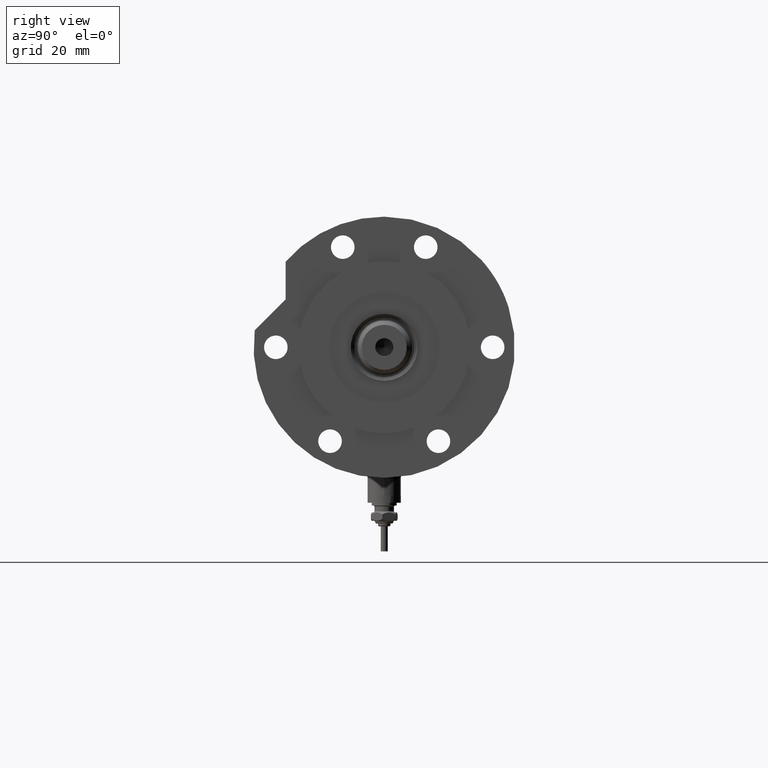
[diagram: clean part render]
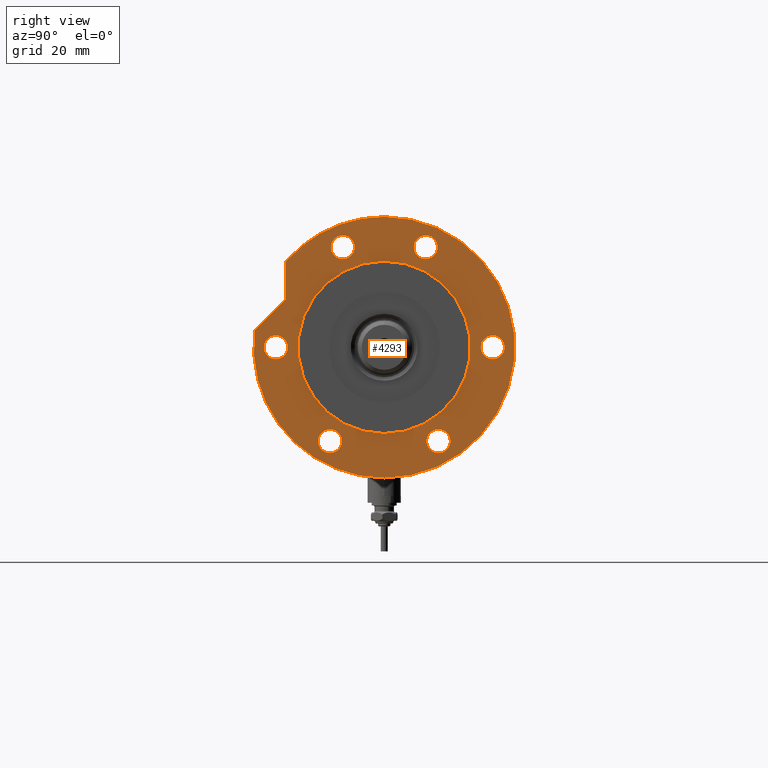
[diagram: same view with one face highlighted and labeled with its STEP entity id]
A machine part, right view. The second image highlights one B-rep face of the part: STEP entity #4293.
In plain terms, the highlighted planar face has unit normal (1, 0, -0).
Its self-contained STEP definition (entity closure, byte-faithful):
#50 = DIRECTION ( 'NONE',  ( 1.000000000000000000, 0.000000000000000000, 0.000000000000000000 ) ) ;
#74 = DIRECTION ( 'NONE',  ( 0.000000000000000000, 0.000000000000000000, 1.000000000000000000 ) ) ;
#185 = FACE_OUTER_BOUND ( 'NONE', #6231, .T. ) ;
#308 = EDGE_CURVE ( 'NONE', #7787, #611, #6320, .T. ) ;
#309 = VERTEX_POINT ( 'NONE', #6880 ) ;
#310 = ORIENTED_EDGE ( 'NONE', *, *, #2231, .F. ) ;
#326 = EDGE_CURVE ( 'NONE', #611, #7787, #3252, .T. ) ;
#352 = CARTESIAN_POINT ( 'NONE',  ( 0.000000000000000000, 0.000000000000000000, 17.00000000000000000 ) ) ;
#359 = CARTESIAN_POINT ( 'NONE',  ( 31.00000000000000711, 3.796405077356795904E-15, 17.00000000000000000 ) ) ;
#396 = CARTESIAN_POINT ( 'NONE',  ( 17.22217135699461110, 35.47361286101150313, 17.00000000000000000 ) ) ;
#560 = ORIENTED_EDGE ( 'NONE', *, *, #6958, .F. ) ;
#598 = DIRECTION ( 'NONE',  ( 0.000000000000000000, 0.000000000000000000, 1.000000000000000000 ) ) ;
#611 = VERTEX_POINT ( 'NONE', #1117 ) ;
#627 = CARTESIAN_POINT ( 'NONE',  ( 3.617158501555293296E-14, 35.47361286101151734, 17.00000000000000000 ) ) ;
#727 = EDGE_CURVE ( 'NONE', #4957, #3474, #4278, .T. ) ;
#742 = CARTESIAN_POINT ( 'NONE',  ( -31.00000000000000711, 0.000000000000000000, 17.00000000000000000 ) ) ;
#959 = ORIENTED_EDGE ( 'NONE', *, *, #5903, .F. ) ;
#961 = CARTESIAN_POINT ( 'NONE',  ( 0.000000000000000000, 0.000000000000000000, 17.00000000000000000 ) ) ;
#1002 = CIRCLE ( 'NONE', #6135, 4.249999999999996447 ) ;
#1100 = VERTEX_POINT ( 'NONE', #1136 ) ;
#1117 = CARTESIAN_POINT ( 'NONE',  ( -38.02499074759302289, -19.50000000000015277, 17.00000000000000000 ) ) ;
#1132 = CIRCLE ( 'NONE', #7792, 46.99999999999999289 ) ;
#1136 = CARTESIAN_POINT ( 'NONE',  ( 46.99999999999999289, 5.755839955992559063E-15, 17.00000000000000000 ) ) ;
#1149 = DIRECTION ( 'NONE',  ( 0.7071067811865511255, -0.7071067811865440200, 0.000000000000000000 ) ) ;
#1159 = DIRECTION ( 'NONE',  ( 1.000000000000000000, 0.000000000000000000, 0.000000000000000000 ) ) ;
#1223 = VERTEX_POINT ( 'NONE', #742 ) ;
#1286 = DIRECTION ( 'NONE',  ( 0.000000000000000000, 0.000000000000000000, 1.000000000000000000 ) ) ;
#1287 = DIRECTION ( 'NONE',  ( 1.000000000000000000, 0.000000000000000000, 0.000000000000000000 ) ) ;
#1304 = EDGE_LOOP ( 'NONE', ( #310, #6862 ) ) ;
#1311 = CARTESIAN_POINT ( 'NONE',  ( 0.000000000000000000, 39.00000000000000000, 17.00000000000000000 ) ) ;
#1329 = CARTESIAN_POINT ( 'NONE',  ( -33.77499074759302289, -19.50000000000015277, 17.00000000000000000 ) ) ;
#1349 = DIRECTION ( 'NONE',  ( 1.000000000000000000, 0.000000000000000000, 0.000000000000000000 ) ) ;
#1400 = CARTESIAN_POINT ( 'NONE',  ( 0.000000000000000000, 39.00000000000000000, 17.00000000000000000 ) ) ;
#1523 = CIRCLE ( 'NONE', #7285, 31.00000000000000711 ) ;
#1645 = LINE ( 'NONE', #3511, #2077 ) ;
#1652 = CARTESIAN_POINT ( 'NONE',  ( 36.03130176794011419, -14.92465386223865842, 17.00000000000000000 ) ) ;
#1681 = DIRECTION ( 'NONE',  ( 0.000000000000000000, 0.000000000000000000, 1.000000000000000000 ) ) ;
#1716 = AXIS2_PLACEMENT_3D ( 'NONE', #352, #5871, #2160 ) ;
#1729 = CARTESIAN_POINT ( 'NONE',  ( 30.83217135699462830, 35.47361286101148892, 17.00000000000000000 ) ) ;
#1801 = ORIENTED_EDGE ( 'NONE', *, *, #4944, .F. ) ;
#1890 = DIRECTION ( 'NONE',  ( 1.000000000000000000, 0.000000000000000000, 0.000000000000000000 ) ) ;
#2068 = CIRCLE ( 'NONE', #4263, 4.250000000000000888 ) ;
#2077 = VECTOR ( 'NONE', #1149, 999.9999999999998863 ) ;
#2109 = EDGE_CURVE ( 'NONE', #6308, #1223, #2941, .T. ) ;
#2128 = ORIENTED_EDGE ( 'NONE', *, *, #2756, .F. ) ;
#2159 = VERTEX_POINT ( 'NONE', #3307 ) ;
#2160 = DIRECTION ( 'NONE',  ( 1.000000000000000000, 0.000000000000000000, 0.000000000000000000 ) ) ;
#2188 = AXIS2_PLACEMENT_3D ( 'NONE', #4912, #2382, #1159 ) ;
#2206 = AXIS2_PLACEMENT_3D ( 'NONE', #1329, #4964, #1890 ) ;
#2222 = DIRECTION ( 'NONE',  ( 1.000000000000000000, 0.000000000000000000, 0.000000000000000000 ) ) ;
#2225 = VERTEX_POINT ( 'NONE', #5873 ) ;
#2231 = EDGE_CURVE ( 'NONE', #1223, #6308, #1523, .T. ) ;
#2294 = CIRCLE ( 'NONE', #2429, 4.250000000000000888 ) ;
#2382 = DIRECTION ( 'NONE',  ( 0.000000000000000000, 0.000000000000000000, 1.000000000000000000 ) ) ;
#2429 = AXIS2_PLACEMENT_3D ( 'NONE', #1311, #598, #7344 ) ;
#2479 = EDGE_CURVE ( 'NONE', #2159, #1100, #1132, .T. ) ;
#2497 = VERTEX_POINT ( 'NONE', #4576 ) ;
#2546 = ORIENTED_EDGE ( 'NONE', *, *, #2479, .T. ) ;
#2552 = CIRCLE ( 'NONE', #5126, 4.250000000000003553 ) ;
#2569 = CIRCLE ( 'NONE', #4754, 46.99999999999999289 ) ;
#2601 = FACE_BOUND ( 'NONE', #7916, .T. ) ;
#2621 = CIRCLE ( 'NONE', #1716, 46.99999999999999289 ) ;
#2656 = ORIENTED_EDGE ( 'NONE', *, *, #7903, .T. ) ;
#2682 = AXIS2_PLACEMENT_3D ( 'NONE', #6096, #7896, #4887 ) ;
#2724 = FACE_BOUND ( 'NONE', #3155, .T. ) ;
#2731 = ORIENTED_EDGE ( 'NONE', *, *, #3242, .F. ) ;
#2756 = EDGE_CURVE ( 'NONE', #2497, #5073, #5119, .T. ) ;
#2871 = EDGE_CURVE ( 'NONE', #4212, #4375, #1002, .T. ) ;
#2941 = CIRCLE ( 'NONE', #7669, 31.00000000000000711 ) ;
#2943 = ORIENTED_EDGE ( 'NONE', *, *, #4113, .F. ) ;
#2986 = CIRCLE ( 'NONE', #3241, 4.250000000000003553 ) ;
#2999 = CIRCLE ( 'NONE', #6326, 4.250000000000000888 ) ;
#3071 = DIRECTION ( 'NONE',  ( 1.000000000000000000, 0.000000000000000000, 0.000000000000000000 ) ) ;
#3154 = DIRECTION ( 'NONE',  ( 0.000000000000000000, 0.000000000000000000, 1.000000000000000000 ) ) ;
#3155 = EDGE_LOOP ( 'NONE', ( #2128, #2731 ) ) ;
#3192 = DIRECTION ( 'NONE',  ( 1.000000000000000000, 0.000000000000000000, 0.000000000000000000 ) ) ;
#3209 = CARTESIAN_POINT ( 'NONE',  ( -4.250000000000000888, -39.00000000000000000, 17.00000000000000000 ) ) ;
#3241 = AXIS2_PLACEMENT_3D ( 'NONE', #5885, #4519, #2222 ) ;
#3242 = EDGE_CURVE ( 'NONE', #5073, #2497, #2552, .T. ) ;
#3248 = ORIENTED_EDGE ( 'NONE', *, *, #308, .F. ) ;
#3252 = CIRCLE ( 'NONE', #2206, 4.250000000000003553 ) ;
#3307 = CARTESIAN_POINT ( 'NONE',  ( -46.99999999999999289, 0.000000000000000000, 17.00000000000000000 ) ) ;
#3412 = CARTESIAN_POINT ( 'NONE',  ( -29.52499074759315434, 19.49999999999992539, 17.00000000000000000 ) ) ;
#3474 = VERTEX_POINT ( 'NONE', #6553 ) ;
#3511 = CARTESIAN_POINT ( 'NONE',  ( 26.34789210900296652, 26.34789210900323297, 17.00000000000000000 ) ) ;
#3548 = DIRECTION ( 'NONE',  ( 1.000000000000000000, 0.000000000000000000, 0.000000000000000000 ) ) ;
#3612 = CARTESIAN_POINT ( 'NONE',  ( -33.77499074759315079, 19.49999999999992539, 17.00000000000000000 ) ) ;
#3637 = AXIS2_PLACEMENT_3D ( 'NONE', #6323, #1286, #7558 ) ;
#3744 = EDGE_CURVE ( 'NONE', #6887, #6739, #2294, .T. ) ;
#3855 = DIRECTION ( 'NONE',  ( 0.000000000000000000, 0.000000000000000000, 1.000000000000000000 ) ) ;
#3874 = CIRCLE ( 'NONE', #2188, 4.249999999999996447 ) ;
#3893 = FACE_BOUND ( 'NONE', #4218, .T. ) ;
#3986 = DIRECTION ( 'NONE',  ( 1.000000000000000000, 0.000000000000000000, 0.000000000000000000 ) ) ;
#4113 = EDGE_CURVE ( 'NONE', #6479, #7648, #6734, .T. ) ;
#4212 = VERTEX_POINT ( 'NONE', #5540 ) ;
#4218 = EDGE_LOOP ( 'NONE', ( #959, #7360 ) ) ;
#4263 = AXIS2_PLACEMENT_3D ( 'NONE', #7478, #4354, #3192 ) ;
#4278 = CIRCLE ( 'NONE', #6070, 4.250000000000003553 ) ;
#4293 = ADVANCED_FACE ( 'NONE', ( #5773, #2724, #3893, #2601, #5658, #4569, #185, #5173 ), #5061, .T. ) ;
#4354 = DIRECTION ( 'NONE',  ( 0.000000000000000000, 0.000000000000000000, 1.000000000000000000 ) ) ;
#4366 = AXIS2_PLACEMENT_3D ( 'NONE', #6253, #3855, #6291 ) ;
#4369 = DIRECTION ( 'NONE',  ( 1.000000000000000000, 0.000000000000000000, 0.000000000000000000 ) ) ;
#4375 = VERTEX_POINT ( 'NONE', #3412 ) ;
#4406 = CARTESIAN_POINT ( 'NONE',  ( 0.000000000000000000, -39.00000000000000000, 17.00000000000000000 ) ) ;
#4519 = DIRECTION ( 'NONE',  ( 0.000000000000000000, 0.000000000000000000, 1.000000000000000000 ) ) ;
#4546 = EDGE_CURVE ( 'NONE', #1100, #7648, #2569, .T. ) ;
#4569 = FACE_BOUND ( 'NONE', #6627, .T. ) ;
#4576 = CARTESIAN_POINT ( 'NONE',  ( 31.78130176794011064, 14.92465386223865842, 17.00000000000000000 ) ) ;
#4608 = CARTESIAN_POINT ( 'NONE',  ( -4.250000000000000888, 39.00000000000000000, 17.00000000000000000 ) ) ;
#4753 = DIRECTION ( 'NONE',  ( 0.000000000000000000, 0.000000000000000000, 1.000000000000000000 ) ) ;
#4754 = AXIS2_PLACEMENT_3D ( 'NONE', #4841, #7924, #1287 ) ;
#4799 = CARTESIAN_POINT ( 'NONE',  ( 40.28130176794012129, -14.92465386223865842, 17.00000000000000000 ) ) ;
#4841 = CARTESIAN_POINT ( 'NONE',  ( 0.000000000000000000, 0.000000000000000000, 17.00000000000000000 ) ) ;
#4887 = DIRECTION ( 'NONE',  ( 1.000000000000000000, 0.000000000000000000, 0.000000000000000000 ) ) ;
#4912 = CARTESIAN_POINT ( 'NONE',  ( -33.77499074759315079, 19.49999999999992539, 17.00000000000000000 ) ) ;
#4944 = EDGE_CURVE ( 'NONE', #4375, #4212, #3874, .T. ) ;
#4957 = VERTEX_POINT ( 'NONE', #4799 ) ;
#4964 = DIRECTION ( 'NONE',  ( 0.000000000000000000, 0.000000000000000000, 1.000000000000000000 ) ) ;
#5061 = PLANE ( 'NONE',  #4366 ) ;
#5073 = VERTEX_POINT ( 'NONE', #6789 ) ;
#5082 = ORIENTED_EDGE ( 'NONE', *, *, #5085, .F. ) ;
#5085 = EDGE_CURVE ( 'NONE', #6739, #6887, #6044, .T. ) ;
#5113 = CARTESIAN_POINT ( 'NONE',  ( 0.000000000000000000, 0.000000000000000000, 17.00000000000000000 ) ) ;
#5119 = CIRCLE ( 'NONE', #2682, 4.250000000000003553 ) ;
#5126 = AXIS2_PLACEMENT_3D ( 'NONE', #6787, #74, #7888 ) ;
#5173 = FACE_BOUND ( 'NONE', #1304, .T. ) ;
#5197 = DIRECTION ( 'NONE',  ( 0.000000000000000000, 0.000000000000000000, 1.000000000000000000 ) ) ;
#5360 = VERTEX_POINT ( 'NONE', #3209 ) ;
#5413 = AXIS2_PLACEMENT_3D ( 'NONE', #1400, #3154, #5721 ) ;
#5421 = CARTESIAN_POINT ( 'NONE',  ( 4.250000000000000888, 39.00000000000000000, 17.00000000000000000 ) ) ;
#5540 = CARTESIAN_POINT ( 'NONE',  ( -38.02499074759315079, 19.49999999999992539, 17.00000000000000000 ) ) ;
#5581 = ORIENTED_EDGE ( 'NONE', *, *, #2871, .F. ) ;
#5658 = FACE_BOUND ( 'NONE', #6025, .T. ) ;
#5719 = EDGE_LOOP ( 'NONE', ( #5082, #5937 ) ) ;
#5721 = DIRECTION ( 'NONE',  ( 1.000000000000000000, 0.000000000000000000, 0.000000000000000000 ) ) ;
#5773 = FACE_BOUND ( 'NONE', #5719, .T. ) ;
#5871 = DIRECTION ( 'NONE',  ( 0.000000000000000000, 0.000000000000000000, 1.000000000000000000 ) ) ;
#5873 = CARTESIAN_POINT ( 'NONE',  ( 4.250000000000000888, -39.00000000000000000, 17.00000000000000000 ) ) ;
#5885 = CARTESIAN_POINT ( 'NONE',  ( 36.03130176794011419, -14.92465386223865842, 17.00000000000000000 ) ) ;
#5903 = EDGE_CURVE ( 'NONE', #3474, #4957, #2986, .T. ) ;
#5937 = ORIENTED_EDGE ( 'NONE', *, *, #3744, .F. ) ;
#6025 = EDGE_LOOP ( 'NONE', ( #6850, #3248 ) ) ;
#6044 = CIRCLE ( 'NONE', #5413, 4.250000000000000888 ) ;
#6056 = DIRECTION ( 'NONE',  ( 0.000000000000000000, 0.000000000000000000, 1.000000000000000000 ) ) ;
#6070 = AXIS2_PLACEMENT_3D ( 'NONE', #1652, #4753, #3071 ) ;
#6096 = CARTESIAN_POINT ( 'NONE',  ( 36.03130176794011419, 14.92465386223865842, 17.00000000000000000 ) ) ;
#6135 = AXIS2_PLACEMENT_3D ( 'NONE', #3612, #6056, #4369 ) ;
#6150 = EDGE_CURVE ( 'NONE', #2225, #5360, #2068, .T. ) ;
#6185 = CARTESIAN_POINT ( 'NONE',  ( -29.52499074759301578, -19.50000000000015277, 17.00000000000000000 ) ) ;
#6231 = EDGE_LOOP ( 'NONE', ( #2943, #6634, #2656, #2546, #7738 ) ) ;
#6253 = CARTESIAN_POINT ( 'NONE',  ( 0.000000000000000000, 0.000000000000000000, 17.00000000000000000 ) ) ;
#6291 = DIRECTION ( 'NONE',  ( 1.000000000000000000, 0.000000000000000000, -0.000000000000000000 ) ) ;
#6301 = CARTESIAN_POINT ( 'NONE',  ( 0.000000000000000000, 0.000000000000000000, 17.00000000000000000 ) ) ;
#6308 = VERTEX_POINT ( 'NONE', #359 ) ;
#6320 = CIRCLE ( 'NONE', #3637, 4.250000000000003553 ) ;
#6323 = CARTESIAN_POINT ( 'NONE',  ( -33.77499074759302289, -19.50000000000015277, 17.00000000000000000 ) ) ;
#6326 = AXIS2_PLACEMENT_3D ( 'NONE', #4406, #6849, #50 ) ;
#6365 = EDGE_CURVE ( 'NONE', #309, #6479, #1645, .T. ) ;
#6479 = VERTEX_POINT ( 'NONE', #396 ) ;
#6553 = CARTESIAN_POINT ( 'NONE',  ( 31.78130176794011064, -14.92465386223865842, 17.00000000000000000 ) ) ;
#6627 = EDGE_LOOP ( 'NONE', ( #5581, #1801 ) ) ;
#6634 = ORIENTED_EDGE ( 'NONE', *, *, #6365, .F. ) ;
#6657 = DIRECTION ( 'NONE',  ( 1.000000000000000000, -1.019675812477181804E-15, 0.000000000000000000 ) ) ;
#6734 = LINE ( 'NONE', #627, #6927 ) ;
#6739 = VERTEX_POINT ( 'NONE', #4608 ) ;
#6787 = CARTESIAN_POINT ( 'NONE',  ( 36.03130176794011419, 14.92465386223865842, 17.00000000000000000 ) ) ;
#6789 = CARTESIAN_POINT ( 'NONE',  ( 40.28130176794012129, 14.92465386223865842, 17.00000000000000000 ) ) ;
#6849 = DIRECTION ( 'NONE',  ( 0.000000000000000000, 0.000000000000000000, 1.000000000000000000 ) ) ;
#6850 = ORIENTED_EDGE ( 'NONE', *, *, #326, .F. ) ;
#6862 = ORIENTED_EDGE ( 'NONE', *, *, #2109, .F. ) ;
#6863 = DIRECTION ( 'NONE',  ( 0.000000000000000000, 0.000000000000000000, 1.000000000000000000 ) ) ;
#6880 = CARTESIAN_POINT ( 'NONE',  ( 6.092310621118299352, 46.60347359688769586, 17.00000000000000000 ) ) ;
#6887 = VERTEX_POINT ( 'NONE', #5421 ) ;
#6927 = VECTOR ( 'NONE', #6657, 1000.000000000000000 ) ;
#6958 = EDGE_CURVE ( 'NONE', #5360, #2225, #2999, .T. ) ;
#6974 = ORIENTED_EDGE ( 'NONE', *, *, #6150, .F. ) ;
#7285 = AXIS2_PLACEMENT_3D ( 'NONE', #961, #1681, #3548 ) ;
#7344 = DIRECTION ( 'NONE',  ( 1.000000000000000000, 0.000000000000000000, 0.000000000000000000 ) ) ;
#7360 = ORIENTED_EDGE ( 'NONE', *, *, #727, .F. ) ;
#7478 = CARTESIAN_POINT ( 'NONE',  ( 0.000000000000000000, -39.00000000000000000, 17.00000000000000000 ) ) ;
#7558 = DIRECTION ( 'NONE',  ( 1.000000000000000000, 0.000000000000000000, 0.000000000000000000 ) ) ;
#7648 = VERTEX_POINT ( 'NONE', #1729 ) ;
#7669 = AXIS2_PLACEMENT_3D ( 'NONE', #5113, #5197, #3986 ) ;
#7738 = ORIENTED_EDGE ( 'NONE', *, *, #4546, .T. ) ;
#7787 = VERTEX_POINT ( 'NONE', #6185 ) ;
#7792 = AXIS2_PLACEMENT_3D ( 'NONE', #6301, #6863, #1349 ) ;
#7888 = DIRECTION ( 'NONE',  ( 1.000000000000000000, 0.000000000000000000, 0.000000000000000000 ) ) ;
#7896 = DIRECTION ( 'NONE',  ( 0.000000000000000000, 0.000000000000000000, 1.000000000000000000 ) ) ;
#7903 = EDGE_CURVE ( 'NONE', #309, #2159, #2621, .T. ) ;
#7916 = EDGE_LOOP ( 'NONE', ( #560, #6974 ) ) ;
#7924 = DIRECTION ( 'NONE',  ( 0.000000000000000000, 0.000000000000000000, 1.000000000000000000 ) ) ;